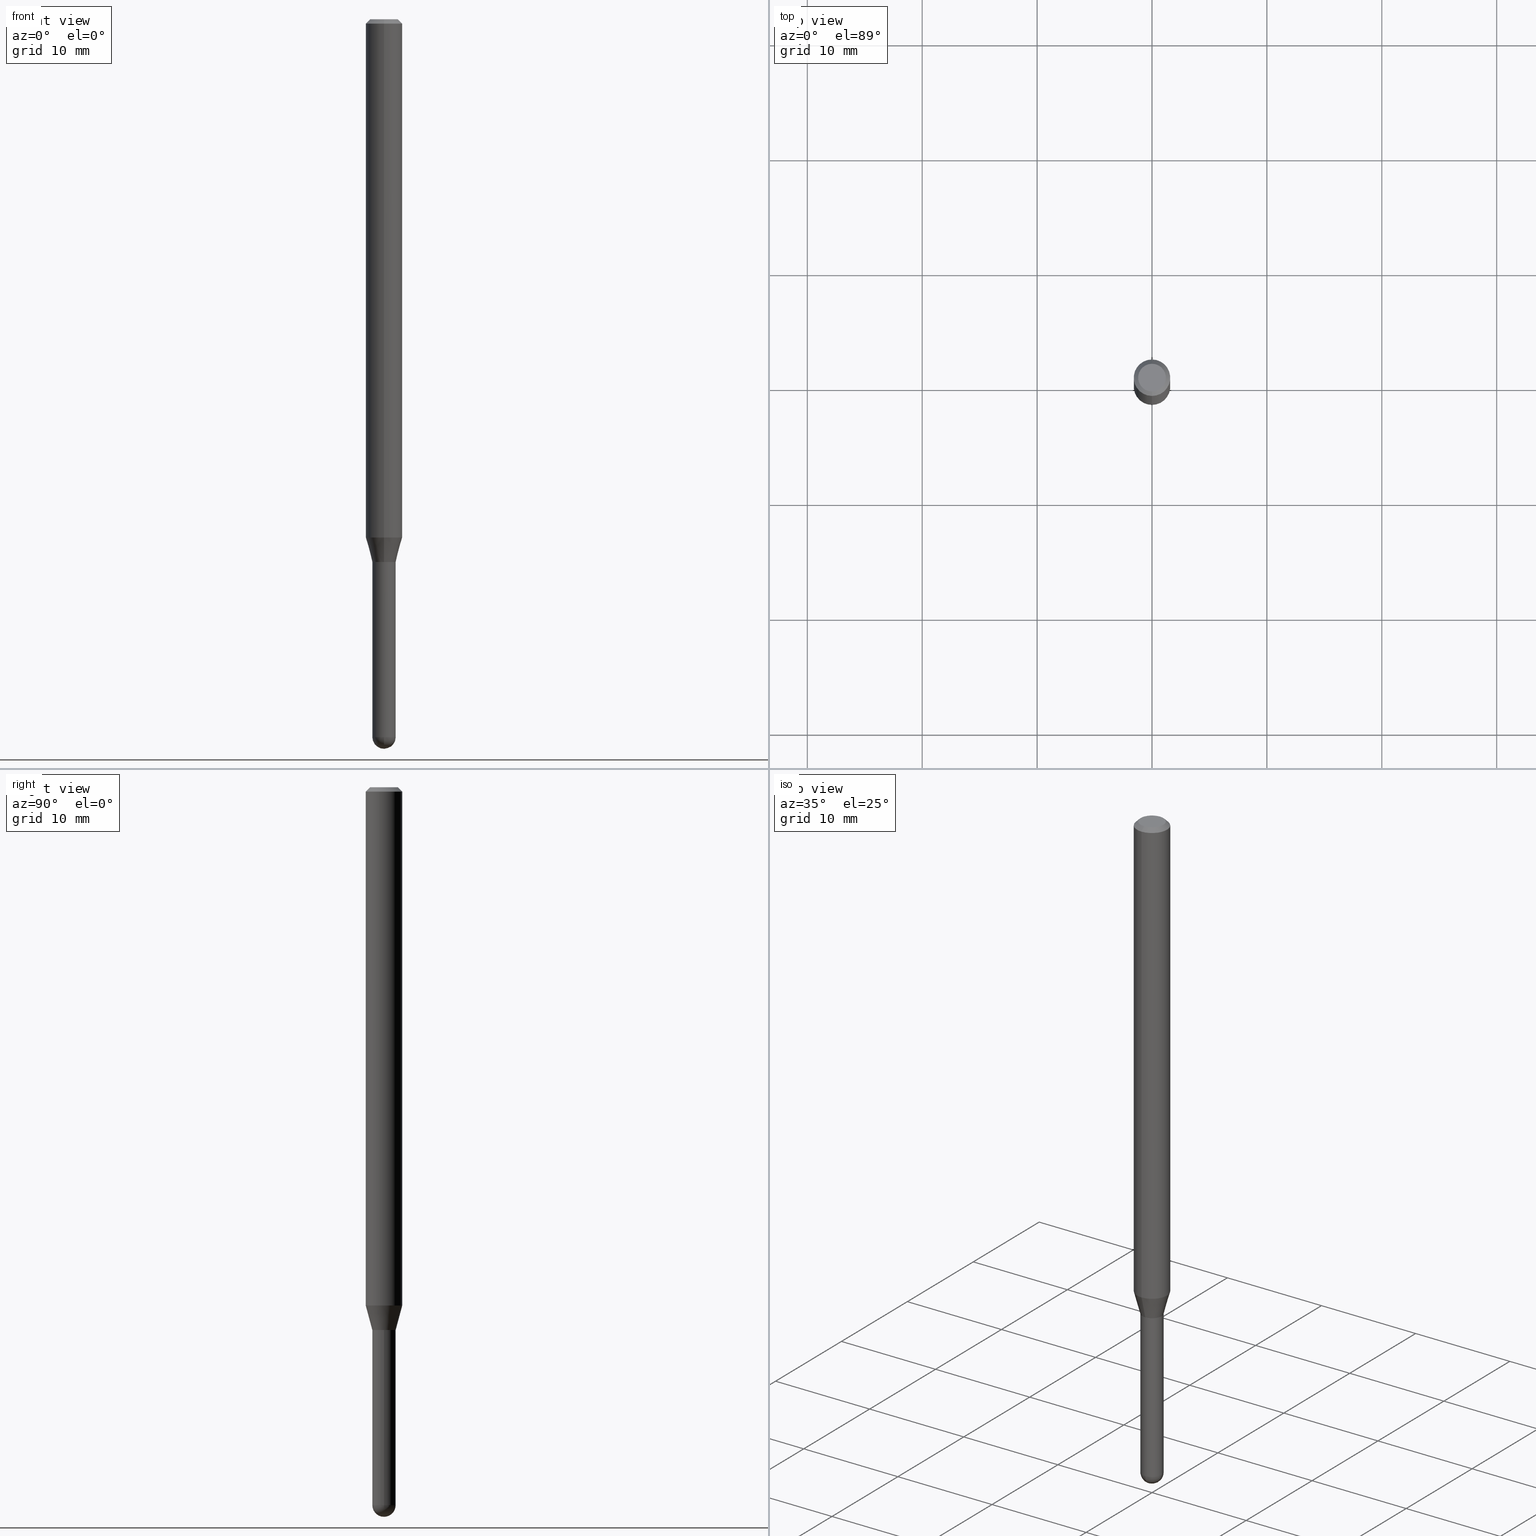
[diagram: canonical four-view strip — front | top / right | iso, engineering-drawing reading convention]
A machine part, canonical four-view strip (front | top / right | iso — engineering-drawing reading convention). The complete STEP part file that produces these views, byte-faithful:
ISO-10303-21;
HEADER;
FILE_DESCRIPTION (( 'STEP AP203' ),
    '1' );
FILE_NAME ('04500.STEP',
    '2024-03-08T20:11:10',
    ( '' ),
    ( '' ),
    'SwSTEP 2.0',
    'SolidWorks 2023',
    '' );
FILE_SCHEMA (( 'CONFIG_CONTROL_DESIGN' ));
ENDSEC;

DATA;
#1 = DIRECTION ( 'NONE',  ( -2.445468705842391373E-29, 3.491481482539668084E-15, 1.000000000000000000 ) ) ;
#2 = AXIS2_PLACEMENT_3D ( 'NONE', #505, #391, #120 ) ;
#3 = ORIENTED_EDGE ( 'NONE', *, *, #334, .T. ) ;
#4 = EDGE_CURVE ( 'NONE', #402, #40, #140, .T. ) ;
#5 = FACE_OUTER_BOUND ( 'NONE', #345, .T. ) ;
#6 = PERSON_AND_ORGANIZATION_ROLE ( 'classification_officer' ) ;
#7 = PERSON_AND_ORGANIZATION_ROLE ( 'design_supplier' ) ;
#8 = EDGE_LOOP ( 'NONE', ( #166, #162, #230, #157 ) ) ;
#9 = PERSON_AND_ORGANIZATION_ROLE ( 'design_owner' ) ;
#10 = AXIS2_PLACEMENT_3D ( 'NONE', #423, #207, #477 ) ;
#11 =( LENGTH_UNIT ( ) NAMED_UNIT ( * ) SI_UNIT ( $, .METRE. ) );
#12 = DIRECTION ( 'NONE',  ( -6.982962677686266711E-15, -1.000000000000000000, 3.491481482539668479E-15 ) ) ;
#13 = DIRECTION ( 'NONE',  ( -2.445468705842391373E-29, 3.491481482539668084E-15, 1.000000000000000000 ) ) ;
#14 = EDGE_CURVE ( 'NONE', #452, #400, #278, .T. ) ;
#15 = ORIENTED_EDGE ( 'NONE', *, *, #136, .T. ) ;
#16 = CC_DESIGN_PERSON_AND_ORGANIZATION_ASSIGNMENT ( #118, #7, ( #43 ) ) ;
#17 = EDGE_CURVE ( 'NONE', #74, #20, #171, .T. ) ;
#18 = ADVANCED_FACE ( 'NONE', ( #210 ), #448, .T. ) ;
#19 = LINE ( 'NONE', #321, #199 ) ;
#20 = VERTEX_POINT ( 'NONE', #263 ) ;
#21 = EDGE_LOOP ( 'NONE', ( #95, #106, #425, #191, #302 ) ) ;
#22 = AXIS2_PLACEMENT_3D ( 'NONE', #479, #301, #291 ) ;
#23 = ORIENTED_EDGE ( 'NONE', *, *, #99, .T. ) ;
#24 = ORIENTED_EDGE ( 'NONE', *, *, #292, .T. ) ;
#25 = CALENDAR_DATE ( 2024, 8, 3 ) ;
#26 = APPROVAL_ROLE ( '' ) ;
#27 = DIRECTION ( 'NONE',  ( -6.982962677686265922E-15, -1.000000000000000000, 3.491481482539668084E-15 ) ) ;
#28 = EDGE_CURVE ( 'NONE', #294, #483, #188, .T. ) ;
#29 = CIRCLE ( 'NONE', #22, 0.04000000000000000083 ) ;
#30 = ORIENTED_EDGE ( 'NONE', *, *, #28, .F. ) ;
#31 = FACE_OUTER_BOUND ( 'NONE', #408, .T. ) ;
#32 = VECTOR ( 'NONE', #245, 39.37007874015748143 ) ;
#33 = VECTOR ( 'NONE', #54, 39.37007874015748143 ) ;
#34 = CARTESIAN_POINT ( 'NONE',  ( 3.668203058763603385E-31, -5.237222223809525349E-17, -0.01500000000000006710 ) ) ;
#35 = ORIENTED_EDGE ( 'NONE', *, *, #456, .F. ) ;
#36 = EDGE_CURVE ( 'NONE', #20, #74, #507, .T. ) ;
#37 = SPHERICAL_SURFACE ( 'NONE', #409, 0.04000000000000007022 ) ;
#38 = DIRECTION ( 'NONE',  ( -6.982962677686267499E-15, -1.000000000000000000, 6.829619984160625111E-15 ) ) ;
#39 = DIRECTION ( 'NONE',  ( -1.000000000000000000, 6.982962677686265922E-15, -4.883557194083112340E-29 ) ) ;
#40 = VERTEX_POINT ( 'NONE', #62 ) ;
#41 = CARTESIAN_POINT ( 'NONE',  ( 6.012432598058718877E-29, -8.593942680750727058E-15, -2.459999999999999964 ) ) ;
#42 = CIRCLE ( 'NONE', #426, 0.06250000000000000000 ) ;
#43 = PRODUCT_DEFINITION_FORMATION_WITH_SPECIFIED_SOURCE ( 'ANY', '', #309, .NOT_KNOWN. ) ;
#44 = AXIS2_PLACEMENT_3D ( 'NONE', #304, #451, #424 ) ;
#45 = CARTESIAN_POINT ( 'NONE',  ( 4.548571792866847949E-29, -6.494155557523782787E-15, -1.860000000000000098 ) ) ;
#46 = DIRECTION ( 'NONE',  ( 2.445468705842390813E-29, -3.491481482539668084E-15, -1.000000000000000000 ) ) ;
#47 = DIRECTION ( 'NONE',  ( 5.024295867788190974E-15, 0.7071067811865681119, 0.7071067811865270336 ) ) ;
#48 = EDGE_CURVE ( 'NONE', #70, #419, #471, .T. ) ;
#49 = CARTESIAN_POINT ( 'NONE',  ( -2.793185071074065514E-16, -0.04000000000000670380, -1.859999999999999876 ) ) ;
#50 = AXIS2_PLACEMENT_3D ( 'NONE', #394, #209, #314 ) ;
#51 = ORIENTED_EDGE ( 'NONE', *, *, #237, .F. ) ;
#52 = EDGE_CURVE ( 'NONE', #113, #234, #219, .T. ) ;
#53 = APPROVAL_PERSON_ORGANIZATION ( #236, #370, #26 ) ;
#54 = DIRECTION ( 'NONE',  ( -2.445468705842391654E-29, 3.491481482539668084E-15, 1.000000000000000000 ) ) ;
#55 = CYLINDRICAL_SURFACE ( 'NONE', #436, 0.06250000000000000000 ) ;
#56 = DIRECTION ( 'NONE',  ( -1.000000000000000000, 6.982962677686265922E-15, -4.883557194083112340E-29 ) ) ;
#57 = DIRECTION ( 'NONE',  ( -6.982962677686265922E-15, -1.000000000000000000, 3.491481482539668084E-15 ) ) ;
#58 = DIRECTION ( 'NONE',  ( -2.445468705842391373E-29, 3.491481482539668084E-15, 1.000000000000000000 ) ) ;
#59 = DIRECTION ( 'NONE',  ( 1.000000000000000000, -6.982962677686265922E-15, 4.876176775795935793E-29 ) ) ;
#60 = ORIENTED_EDGE ( 'NONE', *, *, #343, .T. ) ;
#61 = CARTESIAN_POINT ( 'NONE',  ( 4.548571792866849070E-29, -6.494155557523783576E-15, -1.860000000000000320 ) ) ;
#62 = CARTESIAN_POINT ( 'NONE',  ( -2.758270257685619665E-16, -0.03950000000000649519, -1.860000000000000098 ) ) ;
#63 = LOCAL_TIME ( 15, 11, 10.00000000000000000, #87 ) ;
#64 = CLOSED_SHELL ( 'NONE', ( #399, #105, #192, #194, #18 ) ) ;
#65 = CARTESIAN_POINT ( 'NONE',  ( 2.793185071075110754E-16, 0.03999999999999144518, -2.460000000000000409 ) ) ;
#66 = APPROVAL_DATE_TIME ( #315, #370 ) ;
#67 = MANIFOLD_SOLID_BREP ( 'Body-Move/Copy2[1]', #64 ) ;
#68 = MANIFOLD_SOLID_BREP ( 'Body-Move/Copy2[2]', #83 ) ;
#69 = EDGE_CURVE ( 'NONE', #294, #419, #495, .T. ) ;
#70 = VERTEX_POINT ( 'NONE', #269 ) ;
#71 = CARTESIAN_POINT ( 'NONE',  ( 6.015853263215436432E-29, -8.589044093554138346E-15, -2.459999999999999964 ) ) ;
#72 = AXIS2_PLACEMENT_3D ( 'NONE', #205, #295, #91 ) ;
#73 = EDGE_LOOP ( 'NONE', ( #258, #299, #337, #227 ) ) ;
#74 = VERTEX_POINT ( 'NONE', #49 ) ;
#75 =( NAMED_UNIT ( * ) SI_UNIT ( $, .STERADIAN. ) SOLID_ANGLE_UNIT ( ) );
#76 = CARTESIAN_POINT ( 'NONE',  ( 4.547349058513927237E-29, -6.492409816782513410E-15, -1.859500000000000153 ) ) ;
#77 = AXIS2_PLACEMENT_3D ( 'NONE', #123, #367, #468 ) ;
#78 = ORIENTED_EDGE ( 'NONE', *, *, #292, .F. ) ;
#79 = DATE_AND_TIME ( #284, #502 ) ;
#80 = EDGE_LOOP ( 'NONE', ( #51, #364, #132, #280 ) ) ;
#81 = CIRCLE ( 'NONE', #442, 0.04749999999999999362 ) ;
#82 = APPLICATION_CONTEXT ( 'configuration controlled 3d designs of mechanical parts and assemblies' ) ;
#83 = CLOSED_SHELL ( 'NONE', ( #186, #92, #242, #481, #373, #108, #478, #266, #229, #406, #98, #187 ) ) ;
#84 = ORIENTED_EDGE ( 'NONE', *, *, #371, .T. ) ;
#85 = EDGE_CURVE ( 'NONE', #40, #182, #204, .T. ) ;
#86 = CARTESIAN_POINT ( 'NONE',  ( 4.548571792866849070E-29, -6.494155557523783576E-15, -1.860000000000000320 ) ) ;
#87 = COORDINATED_UNIVERSAL_TIME_OFFSET ( 5, 0, .BEHIND. ) ;
#88 = CARTESIAN_POINT ( 'NONE',  ( -3.773273898774340269E-16, -0.04749999999999999362, 1.003451431938228685E-16 ) ) ;
#89 =( CONVERSION_BASED_UNIT ( 'INCH', #128 ) LENGTH_UNIT ( ) NAMED_UNIT ( #300 ) );
#90 = CARTESIAN_POINT ( 'NONE',  ( 0.000000000000000000, 0.000000000000000000, 0.000000000000000000 ) ) ;
#91 = DIRECTION ( 'NONE',  ( -1.000000000000000000, 6.982962677686265922E-15, -4.876176775795935793E-29 ) ) ;
#92 = ADVANCED_FACE ( 'NONE', ( #443 ), #485, .T. ) ;
#93 = LINE ( 'NONE', #444, #141 ) ;
#94 = ORIENTED_EDGE ( 'NONE', *, *, #17, .F. ) ;
#95 = ORIENTED_EDGE ( 'NONE', *, *, #99, .F. ) ;
#96 = DIRECTION ( 'NONE',  ( -2.445468806185136877E-29, 3.491481338843145188E-15, 1.000000000000000000 ) ) ;
#97 = ORIENTED_EDGE ( 'NONE', *, *, #52, .F. ) ;
#98 = ADVANCED_FACE ( 'NONE', ( #279 ), #349, .T. ) ;
#99 = EDGE_CURVE ( 'NONE', #318, #70, #464, .T. ) ;
#100 = PERSON_AND_ORGANIZATION_ROLE ( 'creator' ) ;
#101 =( NAMED_UNIT ( * ) PLANE_ANGLE_UNIT ( ) SI_UNIT ( $, .RADIAN. ) );
#102 = ADVANCED_BREP_SHAPE_REPRESENTATION ( '04500', ( #67, #68, #221 ), #460 ) ;
#103 = AXIS2_PLACEMENT_3D ( 'NONE', #61, #498, #395 ) ;
#104 = VECTOR ( 'NONE', #319, 39.37007874015748854 ) ;
#105 = ADVANCED_FACE ( 'NONE', ( #403 ), #37, .T. ) ;
#106 = ORIENTED_EDGE ( 'NONE', *, *, #179, .T. ) ;
#107 = DIRECTION ( 'NONE',  ( 1.000000000000000000, -6.982962677686259611E-15, 0.000000000000000000 ) ) ;
#108 = ADVANCED_FACE ( 'NONE', ( #412 ), #206, .T. ) ;
#109 = DIRECTION ( 'NONE',  ( -6.982962677686265922E-15, -1.000000000000000000, 4.370956789862821150E-15 ) ) ;
#110 = DATE_TIME_ROLE ( 'creation_date' ) ;
#111 = AXIS2_PLACEMENT_3D ( 'NONE', #329, #332, #365 ) ;
#112 = DATE_TIME_ROLE ( 'classification_date' ) ;
#113 = VERTEX_POINT ( 'NONE', #193 ) ;
#114 = DIRECTION ( 'NONE',  ( -6.982962677686265922E-15, -1.000000000000000000, 6.829619984160623533E-15 ) ) ;
#115 = ORIENTED_EDGE ( 'NONE', *, *, #28, .T. ) ;
#116 = FACE_OUTER_BOUND ( 'NONE', #220, .T. ) ;
#117 = DIRECTION ( 'NONE',  ( 6.982962677686265922E-15, 1.000000000000000000, -6.829619984160646410E-15 ) ) ;
#118 = PERSON_AND_ORGANIZATION ( #497, #362 ) ;
#119 = EDGE_LOOP ( 'NONE', ( #328, #129 ) ) ;
#120 = DIRECTION ( 'NONE',  ( -6.982962677686265922E-15, -1.000000000000000000, 3.491481482539668479E-15 ) ) ;
#121 = FACE_OUTER_BOUND ( 'NONE', #119, .T. ) ;
#122 = UNCERTAINTY_MEASURE_WITH_UNIT (LENGTH_MEASURE( 1.000000000000000082E-05 ), #89, 'distance_accuracy_value', 'NONE');
#123 = CARTESIAN_POINT ( 'NONE',  ( 6.012432598058718877E-29, -8.593942680750727058E-15, -2.459999999999999964 ) ) ;
#124 = AXIS2_PLACEMENT_3D ( 'NONE', #421, #303, #261 ) ;
#125 = DIRECTION ( 'NONE',  ( 1.000000000000000000, -6.982962677686259611E-15, 0.000000000000000000 ) ) ;
#126 = DIRECTION ( 'NONE',  ( 6.982962677686265922E-15, 1.000000000000000000, -3.483106191921935554E-15 ) ) ;
#127 = EDGE_LOOP ( 'NONE', ( #238, #149 ) ) ;
#128 = LENGTH_MEASURE_WITH_UNIT ( LENGTH_MEASURE( 0.02539999999999999897 ), #11 );
#129 = ORIENTED_EDGE ( 'NONE', *, *, #14, .T. ) ;
#130 = AXIS2_PLACEMENT_3D ( 'NONE', #256, #58, #213 ) ;
#131 = DIRECTION ( 'NONE',  ( -6.982962677686266711E-15, -1.000000000000000000, 3.491481482539668479E-15 ) ) ;
#132 = ORIENTED_EDGE ( 'NONE', *, *, #52, .T. ) ;
#133 = PLANE ( 'NONE',  #378 ) ;
#134 = DIRECTION ( 'NONE',  ( -2.445468806185136597E-29, 3.491481338843145583E-15, 1.000000000000000000 ) ) ;
#135 = ORIENTED_EDGE ( 'NONE', *, *, #456, .T. ) ;
#136 = EDGE_CURVE ( 'NONE', #491, #182, #411, .T. ) ;
#137 = FACE_OUTER_BOUND ( 'NONE', #80, .T. ) ;
#138 = DIRECTION ( 'NONE',  ( -2.445468806185136597E-29, 3.491481338843145583E-15, 1.000000000000000000 ) ) ;
#139 = DIRECTION ( 'NONE',  ( -2.445468705842391373E-29, 3.491481482539668084E-15, 1.000000000000000000 ) ) ;
#140 = CIRCLE ( 'NONE', #433, 0.03950000000000000039 ) ;
#141 = VECTOR ( 'NONE', #297, 39.37007874015748143 ) ;
#142 = LOCAL_TIME ( 15, 11, 10.00000000000000000, #389 ) ;
#143 = EDGE_CURVE ( 'NONE', #293, #509, #357, .T. ) ;
#144 = DIRECTION ( 'NONE',  ( -6.982962677686265922E-15, -1.000000000000000000, 3.483106191921935554E-15 ) ) ;
#145 = CARTESIAN_POINT ( 'NONE',  ( -4.287811248607203282E-16, -0.06250000000000005551, -0.01499999999999984852 ) ) ;
#146 = CIRCLE ( 'NONE', #160, 0.06250000000000000000 ) ;
#147 = LOCAL_TIME ( 15, 11, 10.00000000000000000, #272 ) ;
#148 = VECTOR ( 'NONE', #290, 39.37007874015748143 ) ;
#149 = ORIENTED_EDGE ( 'NONE', *, *, #48, .T. ) ;
#150 = CARTESIAN_POINT ( 'NONE',  ( 2.842170943040869682E-16, 0.03999999999999370726, -1.860000000000000320 ) ) ;
#151 = DATE_AND_TIME ( #231, #147 ) ;
#152 = EDGE_CURVE ( 'NONE', #509, #294, #474, .T. ) ;
#153 = EDGE_CURVE ( 'NONE', #483, #318, #446, .T. ) ;
#154 = AXIS2_PLACEMENT_3D ( 'NONE', #457, #180, #107 ) ;
#155 = DIRECTION ( 'NONE',  ( -2.445468705842391373E-29, 3.491481482539668084E-15, 1.000000000000000000 ) ) ;
#156 = EDGE_CURVE ( 'NONE', #20, #208, #360, .T. ) ;
#157 = ORIENTED_EDGE ( 'NONE', *, *, #136, .F. ) ;
#158 = PLANE ( 'NONE',  #72 ) ;
#159 = CARTESIAN_POINT ( 'NONE',  ( 3.840629472727447874E-16, 0.04749999999999999362, -2.313455976474456035E-16 ) ) ;
#160 = AXIS2_PLACEMENT_3D ( 'NONE', #462, #203, #109 ) ;
#161 = APPROVAL_DATE_TIME ( #79, #473 ) ;
#162 = ORIENTED_EDGE ( 'NONE', *, *, #4, .T. ) ;
#163 = EDGE_CURVE ( 'NONE', #74, #113, #458, .T. ) ;
#164 = DIRECTION ( 'NONE',  ( -6.982962677686265133E-15, -1.000000000000000000, 6.916070870036109544E-15 ) ) ;
#165 = PRODUCT_DEFINITION ( 'UNKNOWN', '', #43, #449 ) ;
#166 = ORIENTED_EDGE ( 'NONE', *, *, #334, .F. ) ;
#167 = CARTESIAN_POINT ( 'NONE',  ( 3.668203058763603385E-31, -5.237222223809525349E-17, -0.01500000000000006710 ) ) ;
#168 = CARTESIAN_POINT ( 'NONE',  ( 0.000000000000000000, 0.000000000000000000, 0.000000000000000000 ) ) ;
#169 = CARTESIAN_POINT ( 'NONE',  ( 0.000000000000000000, 0.000000000000000000, 0.000000000000000000 ) ) ;
#170 = ORIENTED_EDGE ( 'NONE', *, *, #163, .T. ) ;
#171 = CIRCLE ( 'NONE', #10, 0.04000000000000020206 ) ;
#172 = DIRECTION ( 'NONE',  ( 6.982962677686265922E-15, 1.000000000000000000, -3.483106191921935554E-15 ) ) ;
#173 = CARTESIAN_POINT ( 'NONE',  ( 4.548571792866849070E-29, -6.494155557523783576E-15, -1.860000000000000320 ) ) ;
#174 = ORIENTED_EDGE ( 'NONE', *, *, #163, .F. ) ;
#175 = CARTESIAN_POINT ( 'NONE',  ( 1.601787559087330064E-45, -2.286928304645525478E-31, -6.550022722681139215E-17 ) ) ;
#176 = LINE ( 'NONE', #354, #218 ) ;
#177 = CARTESIAN_POINT ( 'NONE',  ( 0.04000000000000000083, -7.820918199008643644E-15, -2.459999999999999964 ) ) ;
#178 = EDGE_CURVE ( 'NONE', #234, #348, #254, .T. ) ;
#179 = EDGE_CURVE ( 'NONE', #318, #509, #289, .T. ) ;
#180 = DIRECTION ( 'NONE',  ( -2.445468806185136597E-29, 3.491481338843145583E-15, 1.000000000000000000 ) ) ;
#181 = CIRCLE ( 'NONE', #487, 0.04000000000000019512 ) ;
#182 = VERTEX_POINT ( 'NONE', #223 ) ;
#183 = CYLINDRICAL_SURFACE ( 'NONE', #2, 0.04000000000000020206 ) ;
#184 = CYLINDRICAL_SURFACE ( 'NONE', #386, 0.04000000000000020206 ) ;
#185 = ORIENTED_EDGE ( 'NONE', *, *, #338, .F. ) ;
#186 = ADVANCED_FACE ( 'NONE', ( #31 ), #184, .F. ) ;
#187 = ADVANCED_FACE ( 'NONE', ( #500 ), #183, .F. ) ;
#188 = CIRCLE ( 'NONE', #217, 0.04000000000000000083 ) ;
#189 = AXIS2_PLACEMENT_3D ( 'NONE', #45, #201, #510 ) ;
#190 = LINE ( 'NONE', #212, #33 ) ;
#191 = ORIENTED_EDGE ( 'NONE', *, *, #69, .T. ) ;
#192 = ADVANCED_FACE ( 'NONE', ( #346 ), #158, .F. ) ;
#193 = CARTESIAN_POINT ( 'NONE',  ( -4.364351673553478876E-16, -0.06250000000000616174, -1.776028856829703351 ) ) ;
#194 = ADVANCED_FACE ( 'NONE', ( #5 ), #476, .T. ) ;
#195 = PERSON_AND_ORGANIZATION ( #497, #362 ) ;
#196 = CARTESIAN_POINT ( 'NONE',  ( -4.364351673553912750E-16, -0.06250000000000005551, -0.01499999999999984852 ) ) ;
#197 = LINE ( 'NONE', #323, #465 ) ;
#198 = APPROVAL_ROLE ( '' ) ;
#199 = VECTOR ( 'NONE', #47, 39.37007874015748143 ) ;
#200 = APPLICATION_CONTEXT ( 'configuration controlled 3d designs of mechanical parts and assemblies' ) ;
#201 = DIRECTION ( 'NONE',  ( -2.445468705842391373E-29, 3.491481482539668084E-15, 1.000000000000000000 ) ) ;
#202 = DIRECTION ( 'NONE',  ( 1.000000000000000000, -6.982962677686265922E-15, 4.876176775795935793E-29 ) ) ;
#203 = DIRECTION ( 'NONE',  ( -2.445468705842391373E-29, 3.491481482539668084E-15, 1.000000000000000000 ) ) ;
#204 = LINE ( 'NONE', #377, #148 ) ;
#205 = CARTESIAN_POINT ( 'NONE',  ( 2.793185071074961364E-16, 0.03999999999999350603, -1.860000000000000320 ) ) ;
#206 = CONICAL_SURFACE ( 'NONE', #189, 0.04000000000000020206, 0.2617993877991570129 ) ;
#207 = DIRECTION ( 'NONE',  ( -2.445468705842391373E-29, 3.491481482539668084E-15, 1.000000000000000000 ) ) ;
#208 = VERTEX_POINT ( 'NONE', #259 ) ;
#209 = DIRECTION ( 'NONE',  ( -2.445468806185136597E-29, 3.491481338843145583E-15, 1.000000000000000000 ) ) ;
#210 = FACE_OUTER_BOUND ( 'NONE', #21, .T. ) ;
#211 = CC_DESIGN_PERSON_AND_ORGANIZATION_ASSIGNMENT ( #195, #9, ( #309 ) ) ;
#212 = CARTESIAN_POINT ( 'NONE',  ( 4.440892098500625669E-16, 0.06250000000000000000, -2.182175926587292553E-16 ) ) ;
#213 = DIRECTION ( 'NONE',  ( -6.982962677686265922E-15, -1.000000000000000000, 4.370956789862821150E-15 ) ) ;
#214 = DIRECTION ( 'NONE',  ( 1.000000000000000000, -6.982962677686259611E-15, 0.000000000000000000 ) ) ;
#215 = ORIENTED_EDGE ( 'NONE', *, *, #17, .T. ) ;
#216 = DIRECTION ( 'NONE',  ( 4.937700262164548042E-15, 0.7071067811865451302, -0.7071067811865499042 ) ) ;
#217 = AXIS2_PLACEMENT_3D ( 'NONE', #445, #134, #214 ) ;
#218 = VECTOR ( 'NONE', #453, 39.37007874015748143 ) ;
#219 = LINE ( 'NONE', #388, #461 ) ;
#220 = EDGE_LOOP ( 'NONE', ( #215, #387, #185, #174 ) ) ;
#221 = AXIS2_PLACEMENT_3D ( 'NONE', #405, #247, #240 ) ;
#222 = ORIENTED_EDGE ( 'NONE', *, *, #429, .F. ) ;
#223 = CARTESIAN_POINT ( 'NONE',  ( -2.793185071074055653E-16, -0.04000000000000655809, -1.859499999999999931 ) ) ;
#224 = AXIS2_PLACEMENT_3D ( 'NONE', #34, #312, #144 ) ;
#225 = APPROVAL_PERSON_ORGANIZATION ( #326, #473, #198 ) ;
#226 = DIRECTION ( 'NONE',  ( -2.445468806185136597E-29, 3.491481338843145583E-15, 1.000000000000000000 ) ) ;
#227 = ORIENTED_EDGE ( 'NONE', *, *, #343, .F. ) ;
#228 = CC_DESIGN_DATE_AND_TIME_ASSIGNMENT ( #151, #110, ( #165 ) ) ;
#229 = ADVANCED_FACE ( 'NONE', ( #121 ), #248, .F. ) ;
#230 = ORIENTED_EDGE ( 'NONE', *, *, #85, .T. ) ;
#231 = CALENDAR_DATE ( 2024, 8, 3 ) ;
#232 = EDGE_CURVE ( 'NONE', #452, #234, #430, .T. ) ;
#233 = ORIENTED_EDGE ( 'NONE', *, *, #69, .F. ) ;
#234 = VERTEX_POINT ( 'NONE', #196 ) ;
#235 = AXIS2_PLACEMENT_3D ( 'NONE', #282, #1, #114 ) ;
#236 = PERSON_AND_ORGANIZATION ( #497, #362 ) ;
#237 = EDGE_CURVE ( 'NONE', #208, #348, #190, .T. ) ;
#238 = ORIENTED_EDGE ( 'NONE', *, *, #429, .T. ) ;
#239 = APPROVAL_STATUS ( 'not_yet_approved' ) ;
#240 = DIRECTION ( 'NONE',  ( 1.000000000000000000, 0.000000000000000000, 0.000000000000000000 ) ) ;
#241 = CYLINDRICAL_SURFACE ( 'NONE', #243, 0.04000000000000000083 ) ;
#242 = ADVANCED_FACE ( 'NONE', ( #414 ), #401, .T. ) ;
#243 = AXIS2_PLACEMENT_3D ( 'NONE', #331, #375, #202 ) ;
#244 = PERSON_AND_ORGANIZATION ( #497, #362 ) ;
#245 = DIRECTION ( 'NONE',  ( -2.445468806185136877E-29, 3.491481338843145188E-15, 1.000000000000000000 ) ) ;
#246 = ORIENTED_EDGE ( 'NONE', *, *, #511, .F. ) ;
#247 = DIRECTION ( 'NONE',  ( 0.000000000000000000, 0.000000000000000000, 1.000000000000000000 ) ) ;
#248 = PLANE ( 'NONE',  #268 ) ;
#249 = DATE_AND_TIME ( #506, #283 ) ;
#250 = MECHANICAL_CONTEXT ( 'NONE', #82, 'mechanical' ) ;
#251 = CARTESIAN_POINT ( 'NONE',  ( 3.668203058763603385E-31, -5.237222223809525349E-17, -0.01500000000000006710 ) ) ;
#252 = CARTESIAN_POINT ( 'NONE',  ( 4.440892098501062007E-16, 0.06249999999999993755, -0.01500000000000028394 ) ) ;
#253 = ORIENTED_EDGE ( 'NONE', *, *, #36, .T. ) ;
#254 = CIRCLE ( 'NONE', #224, 0.06250000000000000000 ) ;
#255 = CARTESIAN_POINT ( 'NONE',  ( 1.601787559087330064E-45, -2.286928304645525478E-31, -6.550022722681139215E-17 ) ) ;
#256 = CARTESIAN_POINT ( 'NONE',  ( 4.343222990050076616E-29, -6.200971866077005685E-15, -1.776028856829703573 ) ) ;
#257 = DIRECTION ( 'NONE',  ( -2.445468705842391373E-29, 3.491481482539668084E-15, 1.000000000000000000 ) ) ;
#258 = ORIENTED_EDGE ( 'NONE', *, *, #14, .F. ) ;
#259 = CARTESIAN_POINT ( 'NONE',  ( 4.440892098501062007E-16, 0.06249999999999383826, -1.776028856829704017 ) ) ;
#260 = DIRECTION ( 'NONE',  ( -2.445468705842391373E-29, 3.491481482539668084E-15, 1.000000000000000000 ) ) ;
#261 = DIRECTION ( 'NONE',  ( 6.982962677686265922E-15, 1.000000000000000000, 0.000000000000000000 ) ) ;
#262 = ORIENTED_EDGE ( 'NONE', *, *, #85, .F. ) ;
#263 = CARTESIAN_POINT ( 'NONE',  ( 3.641531520770964859E-16, 0.03999999999999370726, -1.860000000000000320 ) ) ;
#264 = ORIENTED_EDGE ( 'NONE', *, *, #153, .T. ) ;
#265 = ORIENTED_EDGE ( 'NONE', *, *, #156, .F. ) ;
#266 = ADVANCED_FACE ( 'NONE', ( #381 ), #501, .T. ) ;
#267 = AXIS2_PLACEMENT_3D ( 'NONE', #379, #138, #125 ) ;
#268 = AXIS2_PLACEMENT_3D ( 'NONE', #413, #46, #376 ) ;
#269 = CARTESIAN_POINT ( 'NONE',  ( -0.04000000000000000083, -7.257382597597153280E-15, -1.860000000000000098 ) ) ;
#270 = CC_DESIGN_APPROVAL ( #504, ( #165 ) ) ;
#271 = CARTESIAN_POINT ( 'NONE',  ( -2.793185071074065514E-16, -0.04000000000000670380, -1.859999999999999876 ) ) ;
#272 = COORDINATED_UNIVERSAL_TIME_OFFSET ( 5, 0, .BEHIND. ) ;
#273 = CC_DESIGN_PERSON_AND_ORGANIZATION_ASSIGNMENT ( #499, #404, ( #43 ) ) ;
#274 = ORIENTED_EDGE ( 'NONE', *, *, #463, .F. ) ;
#275 = AXIS2_PLACEMENT_3D ( 'NONE', #86, #13, #361 ) ;
#276 = AXIS2_PLACEMENT_3D ( 'NONE', #251, #340, #126 ) ;
#277 = COORDINATED_UNIVERSAL_TIME_OFFSET ( 5, 0, .BEHIND. ) ;
#278 = CIRCLE ( 'NONE', #431, 0.04749999999999999362 ) ;
#279 = FACE_OUTER_BOUND ( 'NONE', #8, .T. ) ;
#280 = ORIENTED_EDGE ( 'NONE', *, *, #371, .F. ) ;
#281 = PERSON_AND_ORGANIZATION ( #497, #362 ) ;
#282 = CARTESIAN_POINT ( 'NONE',  ( 4.548571792866847949E-29, -6.494155557523782787E-15, -1.860000000000000098 ) ) ;
#283 = LOCAL_TIME ( 15, 11, 10.00000000000000000, #277 ) ;
#284 = CALENDAR_DATE ( 2024, 8, 3 ) ;
#285 = ORIENTED_EDGE ( 'NONE', *, *, #143, .F. ) ;
#286 = CC_DESIGN_PERSON_AND_ORGANIZATION_ASSIGNMENT ( #503, #100, ( #165 ) ) ;
#287 = SHAPE_DEFINITION_REPRESENTATION ( #339, #102 ) ;
#288 = ORIENTED_EDGE ( 'NONE', *, *, #237, .T. ) ;
#289 = CIRCLE ( 'NONE', #296, 0.04000000000000000083 ) ;
#290 = DIRECTION ( 'NONE',  ( -4.937700262164674260E-15, -0.7071067811865632269, 0.7071067811865319186 ) ) ;
#291 = DIRECTION ( 'NONE',  ( 1.000000000000000000, -6.982962677686259611E-15, 0.000000000000000000 ) ) ;
#292 = EDGE_CURVE ( 'NONE', #293, #483, #432, .T. ) ;
#293 = VERTEX_POINT ( 'NONE', #393 ) ;
#294 = VERTEX_POINT ( 'NONE', #177 ) ;
#295 = DIRECTION ( 'NONE',  ( 2.438088387897960049E-29, -3.491481338843145188E-15, -1.000000000000000000 ) ) ;
#296 = AXIS2_PLACEMENT_3D ( 'NONE', #71, #226, #434 ) ;
#297 = DIRECTION ( 'NONE',  ( -2.445468705842391654E-29, 3.491481482539668084E-15, 1.000000000000000000 ) ) ;
#298 = CC_DESIGN_SECURITY_CLASSIFICATION ( #317, ( #43 ) ) ;
#299 = ORIENTED_EDGE ( 'NONE', *, *, #232, .T. ) ;
#300 = DIMENSIONAL_EXPONENTS ( 1.000000000000000000, 0.000000000000000000, 0.000000000000000000, 0.000000000000000000, 0.000000000000000000, 0.000000000000000000, 0.000000000000000000 ) ;
#301 = DIRECTION ( 'NONE',  ( -2.445468806185136597E-29, 3.491481338843145583E-15, 1.000000000000000000 ) ) ;
#302 = ORIENTED_EDGE ( 'NONE', *, *, #48, .F. ) ;
#303 = DIRECTION ( 'NONE',  ( 1.000000000000000000, -6.982962677686265922E-15, 4.883557194083112340E-29 ) ) ;
#304 = CARTESIAN_POINT ( 'NONE',  ( 4.548571792866847949E-29, -6.494155557523782787E-15, -1.860000000000000098 ) ) ;
#305 = ORIENTED_EDGE ( 'NONE', *, *, #511, .T. ) ;
#306 = DIRECTION ( 'NONE',  ( -2.445468705842391373E-29, 3.491481482539668084E-15, 1.000000000000000000 ) ) ;
#307 = ORIENTED_EDGE ( 'NONE', *, *, #179, .F. ) ;
#308 = EDGE_LOOP ( 'NONE', ( #135, #3, #467, #262 ) ) ;
#309 = PRODUCT ( '04500', '04500', '', ( #250 ) ) ;
#310 = DIRECTION ( 'NONE',  ( -6.982962677686265922E-15, -1.000000000000000000, 3.491481482539668479E-15 ) ) ;
#311 = APPROVAL_ROLE ( '' ) ;
#312 = DIRECTION ( 'NONE',  ( -2.445468705842391373E-29, 3.491481482539668084E-15, 1.000000000000000000 ) ) ;
#313 = EDGE_LOOP ( 'NONE', ( #78, #472, #307, #372 ) ) ;
#314 = DIRECTION ( 'NONE',  ( 1.000000000000000000, -6.982962677686259611E-15, 0.000000000000000000 ) ) ;
#315 = DATE_AND_TIME ( #353, #63 ) ;
#316 = AXIS2_PLACEMENT_3D ( 'NONE', #447, #492, #422 ) ;
#317 = SECURITY_CLASSIFICATION ( '', '', #366 ) ;
#318 = VERTEX_POINT ( 'NONE', #344 ) ;
#319 = DIRECTION ( 'NONE',  ( 1.839019923739646069E-15, 0.2588190451025313976, 0.9659258262890653146 ) ) ;
#320 = EDGE_CURVE ( 'NONE', #208, #113, #459, .T. ) ;
#321 = CARTESIAN_POINT ( 'NONE',  ( 2.806643806252849850E-16, 0.03949999999999349864, -1.860000000000000542 ) ) ;
#322 = CIRCLE ( 'NONE', #316, 0.03950000000000000039 ) ;
#323 = CARTESIAN_POINT ( 'NONE',  ( 4.364351673553919652E-16, 0.06249999999999995143, -0.01500000000000028394 ) ) ;
#324 = CARTESIAN_POINT ( 'NONE',  ( -0.04000000000000000083, 2.842170943040400803E-16, -1.967574036101962509E-30 ) ) ;
#325 = CARTESIAN_POINT ( 'NONE',  ( 2.824407374646859273E-16, 0.03949999999999349864, -1.860000000000000542 ) ) ;
#326 = PERSON_AND_ORGANIZATION ( #497, #362 ) ;
#327 = DIRECTION ( 'NONE',  ( -6.982962677686265922E-15, -1.000000000000000000, 3.483106191921935554E-15 ) ) ;
#328 = ORIENTED_EDGE ( 'NONE', *, *, #463, .T. ) ;
#329 = CARTESIAN_POINT ( 'NONE',  ( 4.547349058513927237E-29, -6.492409816782513410E-15, -1.859500000000000153 ) ) ;
#330 = APPLICATION_PROTOCOL_DEFINITION ( 'international standard', 'config_control_design', 1994, #200 ) ;
#331 = CARTESIAN_POINT ( 'NONE',  ( 0.000000000000000000, 0.000000000000000000, 0.000000000000000000 ) ) ;
#332 = DIRECTION ( 'NONE',  ( -2.445468705842391373E-29, 3.491481482539668084E-15, 1.000000000000000000 ) ) ;
#333 = ORIENTED_EDGE ( 'NONE', *, *, #338, .T. ) ;
#334 = EDGE_CURVE ( 'NONE', #402, #491, #19, .T. ) ;
#335 = AXIS2_PLACEMENT_3D ( 'NONE', #169, #490, #59 ) ;
#336 = AXIS2_PLACEMENT_3D ( 'NONE', #167, #488, #172 ) ;
#337 = ORIENTED_EDGE ( 'NONE', *, *, #178, .T. ) ;
#338 = EDGE_CURVE ( 'NONE', #113, #208, #146, .T. ) ;
#339 = PRODUCT_DEFINITION_SHAPE ( 'NONE', 'NONE',  #165 ) ;
#340 = DIRECTION ( 'NONE',  ( 2.445468705842391373E-29, -3.491481482539668084E-15, -1.000000000000000000 ) ) ;
#341 = EDGE_CURVE ( 'NONE', #182, #491, #181, .T. ) ;
#342 = CARTESIAN_POINT ( 'NONE',  ( 3.668203058763603385E-31, -5.237222223809525349E-17, -0.01500000000000006710 ) ) ;
#343 = EDGE_CURVE ( 'NONE', #400, #348, #197, .T. ) ;
#344 = CARTESIAN_POINT ( 'NONE',  ( -0.04000000000000000083, -7.257382597597153280E-15, -2.459999999999999964 ) ) ;
#345 = EDGE_LOOP ( 'NONE', ( #285, #24, #30, #435 ) ) ;
#346 = FACE_OUTER_BOUND ( 'NONE', #127, .T. ) ;
#347 = DIRECTION ( 'NONE',  ( -2.445468705842390813E-29, 3.491481482539668084E-15, 1.000000000000000000 ) ) ;
#348 = VERTEX_POINT ( 'NONE', #252 ) ;
#349 = CONICAL_SURFACE ( 'NONE', #103, 0.03950000000000000039, 0.7853981633974739252 ) ;
#350 = DIRECTION ( 'NONE',  ( -6.982962677686265922E-15, -1.000000000000000000, 3.491481482539668084E-15 ) ) ;
#351 = CARTESIAN_POINT ( 'NONE',  ( 4.548571792866849070E-29, -6.494155557523783576E-15, -1.860000000000000320 ) ) ;
#352 = DIRECTION ( 'NONE',  ( -2.445468705842391654E-29, 3.491481482539668084E-15, 1.000000000000000000 ) ) ;
#353 = CALENDAR_DATE ( 2024, 8, 3 ) ;
#354 = CARTESIAN_POINT ( 'NONE',  ( -2.793185071074520588E-16, -0.04000000000000020206, 1.396592593015874412E-16 ) ) ;
#355 = CARTESIAN_POINT ( 'NONE',  ( 0.000000000000000000, 0.000000000000000000, 0.000000000000000000 ) ) ;
#356 = CC_DESIGN_DATE_AND_TIME_ASSIGNMENT ( #249, #112, ( #317 ) ) ;
#357 = CIRCLE ( 'NONE', #77, 0.04000000000000007022 ) ;
#358 = DIRECTION ( 'NONE',  ( -1.807323732225375499E-15, -0.2588190451025246808, 0.9659258262890673130 ) ) ;
#359 = CC_DESIGN_PERSON_AND_ORGANIZATION_ASSIGNMENT ( #244, #6, ( #317 ) ) ;
#360 = LINE ( 'NONE', #150, #104 ) ;
#361 = DIRECTION ( 'NONE',  ( -6.982962677686265133E-15, -1.000000000000000000, 6.916070870036109544E-15 ) ) ;
#362 = ORGANIZATION ( 'UNSPECIFIED', 'UNSPECIFIED', '' ) ;
#363 = VECTOR ( 'NONE', #96, 39.37007874015748143 ) ;
#364 = ORIENTED_EDGE ( 'NONE', *, *, #320, .T. ) ;
#365 = DIRECTION ( 'NONE',  ( -6.982962677686267499E-15, -1.000000000000000000, 6.829619984160625111E-15 ) ) ;
#366 = SECURITY_CLASSIFICATION_LEVEL ( 'unclassified' ) ;
#367 = DIRECTION ( 'NONE',  ( -1.000000000000000000, 7.105427357601001070E-15, -4.926315508542082329E-29 ) ) ;
#368 = COORDINATED_UNIVERSAL_TIME_OFFSET ( 5, 0, .BEHIND. ) ;
#369 = AXIS2_PLACEMENT_3D ( 'NONE', #470, #56, #383 ) ;
#370 = APPROVAL ( #390, 'UNSPECIFIED' ) ;
#371 = EDGE_CURVE ( 'NONE', #348, #234, #42, .T. ) ;
#372 = ORIENTED_EDGE ( 'NONE', *, *, #153, .F. ) ;
#373 = ADVANCED_FACE ( 'NONE', ( #116 ), #455, .T. ) ;
#374 = ORIENTED_EDGE ( 'NONE', *, *, #232, .F. ) ;
#375 = DIRECTION ( 'NONE',  ( -2.445468806185136597E-29, 3.491481338843145583E-15, 1.000000000000000000 ) ) ;
#376 = DIRECTION ( 'NONE',  ( 6.982962677686265922E-15, 1.000000000000000000, -3.491481482539668084E-15 ) ) ;
#377 = CARTESIAN_POINT ( 'NONE',  ( -2.758270257685619665E-16, -0.03950000000000649519, -1.860000000000000098 ) ) ;
#378 = AXIS2_PLACEMENT_3D ( 'NONE', #173, #347, #27 ) ;
#379 = CARTESIAN_POINT ( 'NONE',  ( 4.548571979504354361E-29, -6.494155290248250444E-15, -1.860000000000000098 ) ) ;
#380 = PRODUCT_RELATED_PRODUCT_CATEGORY ( 'detail', '', ( #309 ) ) ;
#381 = FACE_OUTER_BOUND ( 'NONE', #398, .T. ) ;
#382 = FACE_OUTER_BOUND ( 'NONE', #494, .T. ) ;
#383 = DIRECTION ( 'NONE',  ( 6.982962677686265922E-15, 1.000000000000000000, -6.829619984160646410E-15 ) ) ;
#384 = CYLINDRICAL_SURFACE ( 'NONE', #396, 0.06250000000000000000 ) ;
#385 = ORIENTED_EDGE ( 'NONE', *, *, #341, .T. ) ;
#386 = AXIS2_PLACEMENT_3D ( 'NONE', #355, #139, #310 ) ;
#387 = ORIENTED_EDGE ( 'NONE', *, *, #156, .T. ) ;
#388 = CARTESIAN_POINT ( 'NONE',  ( -4.364351673553916201E-16, -0.06250000000000000000, 2.182175926587292553E-16 ) ) ;
#389 = COORDINATED_UNIVERSAL_TIME_OFFSET ( 5, 0, .BEHIND. ) ;
#390 = APPROVAL_STATUS ( 'not_yet_approved' ) ;
#391 = DIRECTION ( 'NONE',  ( -2.445468705842391373E-29, 3.491481482539668084E-15, 1.000000000000000000 ) ) ;
#392 = CARTESIAN_POINT ( 'NONE',  ( -2.842170943039801268E-16, -0.04000000000000862588, -2.459999999999999520 ) ) ;
#393 = CARTESIAN_POINT ( 'NONE',  ( 6.111961682884482715E-29, -8.731152640706158510E-15, -2.500000000000000000 ) ) ;
#394 = CARTESIAN_POINT ( 'NONE',  ( 6.015853263215436432E-29, -8.589044093554138346E-15, -2.459999999999999964 ) ) ;
#395 = DIRECTION ( 'NONE',  ( -6.982962677686265133E-15, -1.000000000000000000, 6.916070870036109544E-15 ) ) ;
#396 = AXIS2_PLACEMENT_3D ( 'NONE', #168, #306, #350 ) ;
#397 = ORIENTED_EDGE ( 'NONE', *, *, #36, .F. ) ;
#398 = EDGE_LOOP ( 'NONE', ( #374, #274, #60, #84 ) ) ;
#399 = ADVANCED_FACE ( 'NONE', ( #466 ), #241, .T. ) ;
#400 = VERTEX_POINT ( 'NONE', #159 ) ;
#401 = CONICAL_SURFACE ( 'NONE', #276, 0.06250000000000000000, 0.7853981633974483900 ) ;
#402 = VERTEX_POINT ( 'NONE', #325 ) ;
#403 = FACE_OUTER_BOUND ( 'NONE', #313, .T. ) ;
#404 = PERSON_AND_ORGANIZATION_ROLE ( 'creator' ) ;
#405 = CARTESIAN_POINT ( 'NONE',  ( 0.000000000000000000, 0.000000000000000000, 0.000000000000000000 ) ) ;
#406 = ADVANCED_FACE ( 'NONE', ( #382 ), #133, .F. ) ;
#407 = DIRECTION ( 'NONE',  ( -2.445468705842391373E-29, 3.491481482539668084E-15, 1.000000000000000000 ) ) ;
#408 = EDGE_LOOP ( 'NONE', ( #397, #480, #15, #246 ) ) ;
#409 = AXIS2_PLACEMENT_3D ( 'NONE', #41, #39, #117 ) ;
#410 = APPLICATION_PROTOCOL_DEFINITION ( 'international standard', 'config_control_design', 1994, #82 ) ;
#411 = CIRCLE ( 'NONE', #111, 0.04000000000000019512 ) ;
#412 = FACE_OUTER_BOUND ( 'NONE', #440, .T. ) ;
#413 = CARTESIAN_POINT ( 'NONE',  ( 3.316907271900976096E-16, 0.04749999999999999362, -1.985954840340399321E-16 ) ) ;
#414 = FACE_OUTER_BOUND ( 'NONE', #73, .T. ) ;
#415 = DIRECTION ( 'NONE',  ( -2.445468705842391373E-29, 3.491481482539668084E-15, 1.000000000000000000 ) ) ;
#416 = VECTOR ( 'NONE', #484, 39.37007874015748143 ) ;
#417 = APPROVAL_PERSON_ORGANIZATION ( #281, #504, #311 ) ;
#418 = DIRECTION ( 'NONE',  ( -2.445468705842391373E-29, 3.491481482539668084E-15, 1.000000000000000000 ) ) ;
#419 = VERTEX_POINT ( 'NONE', #482 ) ;
#420 = ORIENTED_EDGE ( 'NONE', *, *, #178, .F. ) ;
#421 = CARTESIAN_POINT ( 'NONE',  ( 6.012432598058718877E-29, -8.593942680750727058E-15, -2.459999999999999964 ) ) ;
#422 = DIRECTION ( 'NONE',  ( -6.982962677686265133E-15, -1.000000000000000000, 6.916070870036109544E-15 ) ) ;
#423 = CARTESIAN_POINT ( 'NONE',  ( 4.548571792866847949E-29, -6.494155557523782787E-15, -1.860000000000000098 ) ) ;
#424 = DIRECTION ( 'NONE',  ( -6.982962677686265922E-15, -1.000000000000000000, 6.829619984160623533E-15 ) ) ;
#425 = ORIENTED_EDGE ( 'NONE', *, *, #152, .T. ) ;
#426 = AXIS2_PLACEMENT_3D ( 'NONE', #342, #155, #327 ) ;
#427 = FACE_OUTER_BOUND ( 'NONE', #469, .T. ) ;
#428 = APPROVAL_DATE_TIME ( #496, #504 ) ;
#429 = EDGE_CURVE ( 'NONE', #419, #70, #29, .T. ) ;
#430 = LINE ( 'NONE', #145, #416 ) ;
#431 = AXIS2_PLACEMENT_3D ( 'NONE', #175, #415, #131 ) ;
#432 = CIRCLE ( 'NONE', #124, 0.04000000000000007022 ) ;
#433 = AXIS2_PLACEMENT_3D ( 'NONE', #351, #257, #164 ) ;
#434 = DIRECTION ( 'NONE',  ( 1.000000000000000000, -6.982962677686259611E-15, 0.000000000000000000 ) ) ;
#435 = ORIENTED_EDGE ( 'NONE', *, *, #152, .F. ) ;
#436 = AXIS2_PLACEMENT_3D ( 'NONE', #90, #260, #57 ) ;
#437 = CC_DESIGN_APPROVAL ( #370, ( #43 ) ) ;
#438 = EDGE_LOOP ( 'NONE', ( #450, #94, #305, #385 ) ) ;
#439 = EDGE_CURVE ( 'NONE', #20, #491, #93, .T. ) ;
#440 = EDGE_LOOP ( 'NONE', ( #265, #253, #170, #486 ) ) ;
#441 = EDGE_LOOP ( 'NONE', ( #264, #23, #222, #233, #115 ) ) ;
#442 = AXIS2_PLACEMENT_3D ( 'NONE', #255, #418, #12 ) ;
#443 = FACE_OUTER_BOUND ( 'NONE', #308, .T. ) ;
#444 = CARTESIAN_POINT ( 'NONE',  ( 2.842170943040414608E-16, 0.04000000000000020206, -1.396592593015874412E-16 ) ) ;
#445 = CARTESIAN_POINT ( 'NONE',  ( 6.015853263215436432E-29, -8.589044093554138346E-15, -2.459999999999999964 ) ) ;
#446 = CIRCLE ( 'NONE', #154, 0.04000000000000000083 ) ;
#447 = CARTESIAN_POINT ( 'NONE',  ( 4.548571792866849070E-29, -6.494155557523783576E-15, -1.860000000000000320 ) ) ;
#448 = CYLINDRICAL_SURFACE ( 'NONE', #335, 0.04000000000000000083 ) ;
#449 = DESIGN_CONTEXT ( 'detailed design', #200, 'design' ) ;
#450 = ORIENTED_EDGE ( 'NONE', *, *, #439, .F. ) ;
#451 = DIRECTION ( 'NONE',  ( -2.445468705842391373E-29, 3.491481482539668084E-15, 1.000000000000000000 ) ) ;
#452 = VERTEX_POINT ( 'NONE', #88 ) ;
#453 = DIRECTION ( 'NONE',  ( -2.445468705842391654E-29, 3.491481482539668084E-15, 1.000000000000000000 ) ) ;
#454 = CARTESIAN_POINT ( 'NONE',  ( 0.04000000000000000083, -2.793185071074506290E-16, 1.950470710318374387E-30 ) ) ;
#455 = CONICAL_SURFACE ( 'NONE', #235, 0.04000000000000020206, 0.2617993877991570129 ) ;
#456 = EDGE_CURVE ( 'NONE', #40, #402, #322, .T. ) ;
#457 = CARTESIAN_POINT ( 'NONE',  ( 6.015853263215436432E-29, -8.589044093554138346E-15, -2.459999999999999964 ) ) ;
#458 = LINE ( 'NONE', #271, #508 ) ;
#459 = CIRCLE ( 'NONE', #130, 0.06250000000000000000 ) ;
#460 =( GEOMETRIC_REPRESENTATION_CONTEXT ( 3 ) GLOBAL_UNCERTAINTY_ASSIGNED_CONTEXT ( ( #122 ) ) GLOBAL_UNIT_ASSIGNED_CONTEXT ( ( #89, #101, #75 ) ) REPRESENTATION_CONTEXT ( 'NONE', 'WORKASPACE' ) );
#461 = VECTOR ( 'NONE', #352, 39.37007874015748143 ) ;
#462 = CARTESIAN_POINT ( 'NONE',  ( 4.343222990050076616E-29, -6.200971866077005685E-15, -1.776028856829703573 ) ) ;
#463 = EDGE_CURVE ( 'NONE', #400, #452, #81, .T. ) ;
#464 = LINE ( 'NONE', #324, #32 ) ;
#465 = VECTOR ( 'NONE', #216, 39.37007874015748143 ) ;
#466 = FACE_OUTER_BOUND ( 'NONE', #441, .T. ) ;
#467 = ORIENTED_EDGE ( 'NONE', *, *, #341, .F. ) ;
#468 = DIRECTION ( 'NONE',  ( -7.105427357601000281E-15, -1.000000000000000000, 0.000000000000000000 ) ) ;
#469 = EDGE_LOOP ( 'NONE', ( #333, #288, #420, #97 ) ) ;
#470 = CARTESIAN_POINT ( 'NONE',  ( 6.012432598058718877E-29, -8.593942680750727058E-15, -2.459999999999999964 ) ) ;
#471 = CIRCLE ( 'NONE', #267, 0.04000000000000000083 ) ;
#472 = ORIENTED_EDGE ( 'NONE', *, *, #143, .T. ) ;
#473 = APPROVAL ( #239, 'UNSPECIFIED' ) ;
#474 = CIRCLE ( 'NONE', #50, 0.04000000000000000083 ) ;
#475 = CC_DESIGN_APPROVAL ( #473, ( #317 ) ) ;
#476 = SPHERICAL_SURFACE ( 'NONE', #369, 0.04000000000000007022 ) ;
#477 = DIRECTION ( 'NONE',  ( -6.982962677686265922E-15, -1.000000000000000000, 6.829619984160623533E-15 ) ) ;
#478 = ADVANCED_FACE ( 'NONE', ( #137 ), #55, .T. ) ;
#479 = CARTESIAN_POINT ( 'NONE',  ( 4.548571979504354361E-29, -6.494155290248250444E-15, -1.860000000000000098 ) ) ;
#480 = ORIENTED_EDGE ( 'NONE', *, *, #439, .T. ) ;
#481 = ADVANCED_FACE ( 'NONE', ( #427 ), #384, .T. ) ;
#482 = CARTESIAN_POINT ( 'NONE',  ( 0.04000000000000000083, -6.773473797355701271E-15, -1.860000000000000098 ) ) ;
#483 = VERTEX_POINT ( 'NONE', #65 ) ;
#484 = DIRECTION ( 'NONE',  ( -4.851104656540964275E-15, -0.7071067811865500152, -0.7071067811865450192 ) ) ;
#485 = CONICAL_SURFACE ( 'NONE', #275, 0.03950000000000000039, 0.7853981633974739252 ) ;
#486 = ORIENTED_EDGE ( 'NONE', *, *, #320, .F. ) ;
#487 = AXIS2_PLACEMENT_3D ( 'NONE', #76, #407, #38 ) ;
#488 = DIRECTION ( 'NONE',  ( 2.445468705842391373E-29, -3.491481482539668084E-15, -1.000000000000000000 ) ) ;
#489 = CARTESIAN_POINT ( 'NONE',  ( 2.842170943040878557E-16, 0.03999999999999383909, -1.859500000000000375 ) ) ;
#490 = DIRECTION ( 'NONE',  ( -2.445468806185136597E-29, 3.491481338843145583E-15, 1.000000000000000000 ) ) ;
#491 = VERTEX_POINT ( 'NONE', #489 ) ;
#492 = DIRECTION ( 'NONE',  ( -2.445468705842391373E-29, 3.491481482539668084E-15, 1.000000000000000000 ) ) ;
#493 = ORIENTED_EDGE ( 'NONE', *, *, #4, .F. ) ;
#494 = EDGE_LOOP ( 'NONE', ( #35, #493 ) ) ;
#495 = LINE ( 'NONE', #454, #363 ) ;
#496 = DATE_AND_TIME ( #25, #142 ) ;
#497 = PERSON ( 'UNSPECIFIED', 'UNSPECIFIED', 'UNSPECIFIED', ('UNSPECIFIED'), ('UNSPECIFIED'), ('UNSPECIFIED') ) ;
#498 = DIRECTION ( 'NONE',  ( -2.445468705842391373E-29, 3.491481482539668084E-15, 1.000000000000000000 ) ) ;
#499 = PERSON_AND_ORGANIZATION ( #497, #362 ) ;
#500 = FACE_OUTER_BOUND ( 'NONE', #438, .T. ) ;
#501 = CONICAL_SURFACE ( 'NONE', #336, 0.06250000000000000000, 0.7853981633974483900 ) ;
#502 = LOCAL_TIME ( 15, 11, 10.00000000000000000, #368 ) ;
#503 = PERSON_AND_ORGANIZATION ( #497, #362 ) ;
#504 = APPROVAL ( #512, 'UNSPECIFIED' ) ;
#505 = CARTESIAN_POINT ( 'NONE',  ( 0.000000000000000000, 0.000000000000000000, 0.000000000000000000 ) ) ;
#506 = CALENDAR_DATE ( 2024, 8, 3 ) ;
#507 = CIRCLE ( 'NONE', #44, 0.04000000000000020206 ) ;
#508 = VECTOR ( 'NONE', #358, 39.37007874015748854 ) ;
#509 = VERTEX_POINT ( 'NONE', #392 ) ;
#510 = DIRECTION ( 'NONE',  ( -6.982962677686265922E-15, -1.000000000000000000, 6.829619984160623533E-15 ) ) ;
#511 = EDGE_CURVE ( 'NONE', #74, #182, #176, .T. ) ;
#512 = APPROVAL_STATUS ( 'not_yet_approved' ) ;
ENDSEC;
END-ISO-10303-21;
